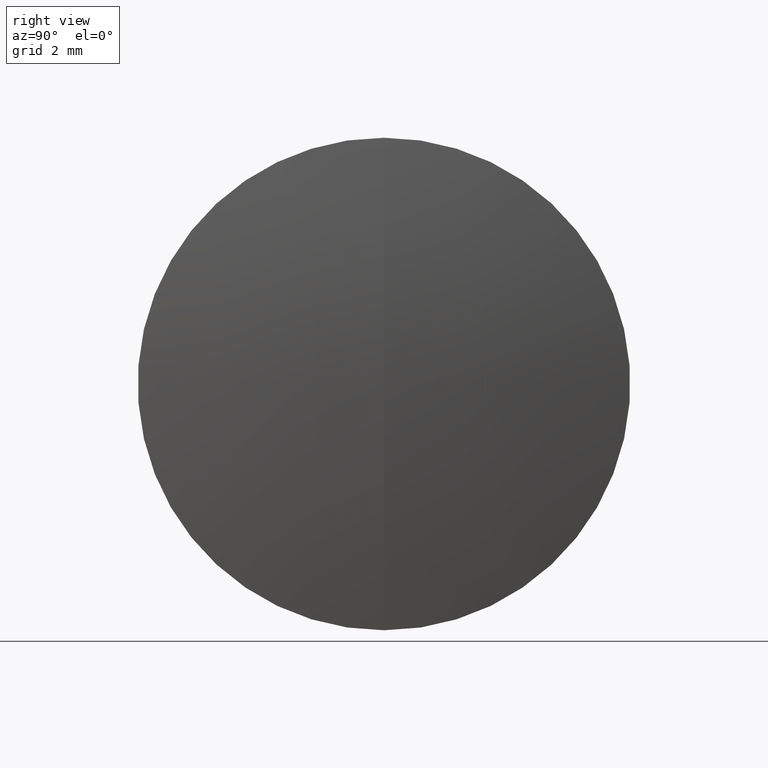
[diagram: clean part render]
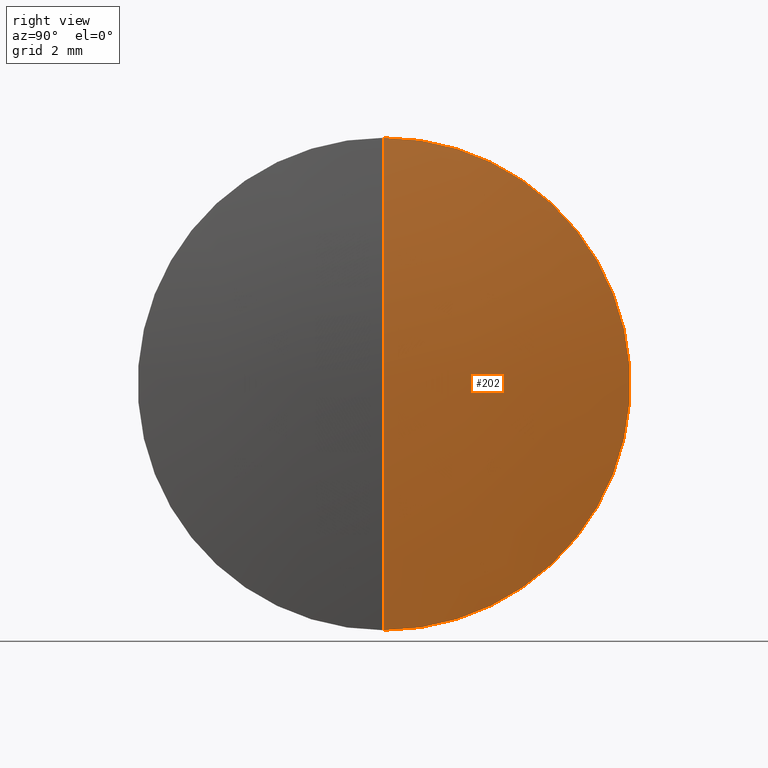
[diagram: same view with one face highlighted and labeled with its STEP entity id]
A machine part, right view. The second image highlights one B-rep face of the part: STEP entity #202.
In plain terms, the highlighted spherical surface has radius 41.14 mm.
Its self-contained STEP definition (entity closure, byte-faithful):
#2 = ORIENTED_EDGE ( 'NONE', *, *, #272, .F. ) ;
#12 = AXIS2_PLACEMENT_3D ( 'NONE', #237, #157, #56 ) ;
#14 = SPHERICAL_SURFACE ( 'NONE', #90, 41.14000000000000100 ) ;
#33 = DIRECTION ( 'NONE',  ( 0.0000000000000000000, 0.0000000000000000000, 1.000000000000000000 ) ) ;
#37 = DIRECTION ( 'NONE',  ( 0.0000000000000000000, 0.0000000000000000000, 1.000000000000000000 ) ) ;
#38 = CARTESIAN_POINT ( 'NONE',  ( -36.56107921926129500, 0.0000000000000000000, 0.0000000000000000000 ) ) ;
#41 = ORIENTED_EDGE ( 'NONE', *, *, #223, .F. ) ;
#51 = CIRCLE ( 'NONE', #340, 6.250000000000000900 ) ;
#56 = DIRECTION ( 'NONE',  ( 0.0000000000000000000, -1.224646799147353200E-016, 1.000000000000000000 ) ) ;
#73 = VERTEX_POINT ( 'NONE', #204 ) ;
#90 = AXIS2_PLACEMENT_3D ( 'NONE', #38, #244, #37 ) ;
#109 = DIRECTION ( 'NONE',  ( 0.0000000000000000000, 0.0000000000000000000, -1.000000000000000000 ) ) ;
#131 = ORIENTED_EDGE ( 'NONE', *, *, #261, .T. ) ;
#142 = FACE_OUTER_BOUND ( 'NONE', #228, .T. ) ;
#155 = CARTESIAN_POINT ( 'NONE',  ( 4.101398570465201800, 0.0000000000000000000, 0.0000000000000000000 ) ) ;
#157 = DIRECTION ( 'NONE',  ( -0.0000000000000000000, 1.000000000000000000, 1.224646799147353200E-016 ) ) ;
#202 = ADVANCED_FACE ( 'NONE', ( #142 ), #14, .T. ) ;
#204 = CARTESIAN_POINT ( 'NONE',  ( 4.578920780738710200, 0.0000000000000000000, 2.519098465846105500E-015 ) ) ;
#211 = CIRCLE ( 'NONE', #12, 41.14000000000000100 ) ;
#223 = EDGE_CURVE ( 'NONE', #73, #314, #286, .T. ) ;
#228 = EDGE_LOOP ( 'NONE', ( #41, #131, #2 ) ) ;
#236 = DIRECTION ( 'NONE',  ( -1.000000000000000000, -0.0000000000000000000, -0.0000000000000000000 ) ) ;
#237 = CARTESIAN_POINT ( 'NONE',  ( -36.56107921926129500, 0.0000000000000000000, 0.0000000000000000000 ) ) ;
#241 = CARTESIAN_POINT ( 'NONE',  ( -36.56107921926129500, 0.0000000000000000000, 0.0000000000000000000 ) ) ;
#244 = DIRECTION ( 'NONE',  ( 0.0000000000000000000, 1.000000000000000000, 0.0000000000000000000 ) ) ;
#257 = AXIS2_PLACEMENT_3D ( 'NONE', #241, #341, #109 ) ;
#259 = CARTESIAN_POINT ( 'NONE',  ( 4.101398570465201800, 7.654042494670959600E-016, -6.250000000000001800 ) ) ;
#261 = EDGE_CURVE ( 'NONE', #73, #333, #211, .T. ) ;
#272 = EDGE_CURVE ( 'NONE', #314, #333, #51, .T. ) ;
#286 = CIRCLE ( 'NONE', #257, 41.14000000000000100 ) ;
#296 = CARTESIAN_POINT ( 'NONE',  ( 4.101398570465201800, 0.0000000000000000000, 6.250000000000000900 ) ) ;
#314 = VERTEX_POINT ( 'NONE', #296 ) ;
#333 = VERTEX_POINT ( 'NONE', #259 ) ;
#340 = AXIS2_PLACEMENT_3D ( 'NONE', #155, #236, #33 ) ;
#341 = DIRECTION ( 'NONE',  ( 0.0000000000000000000, -1.000000000000000000, 0.0000000000000000000 ) ) ;